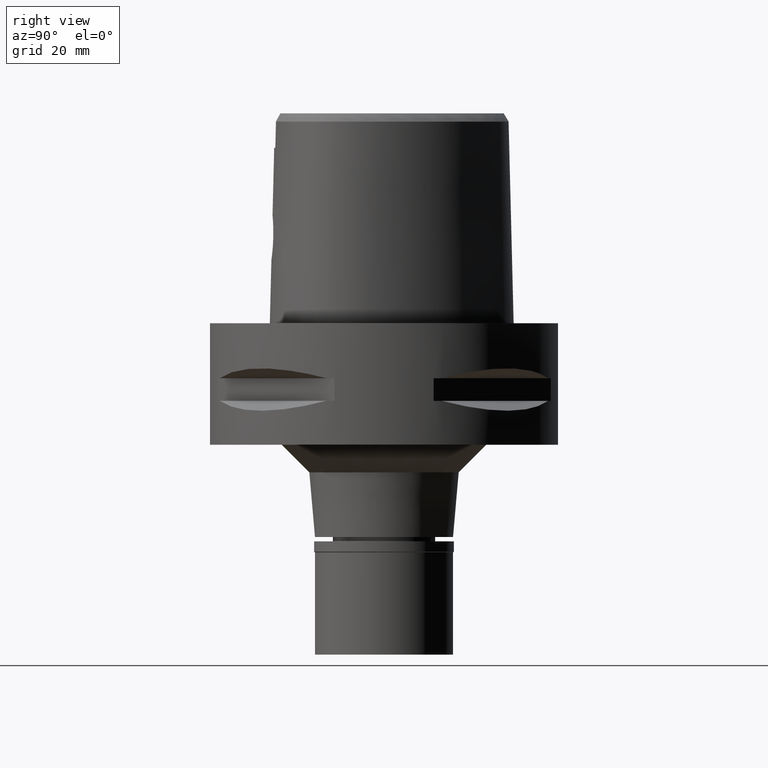
[diagram: clean part render]
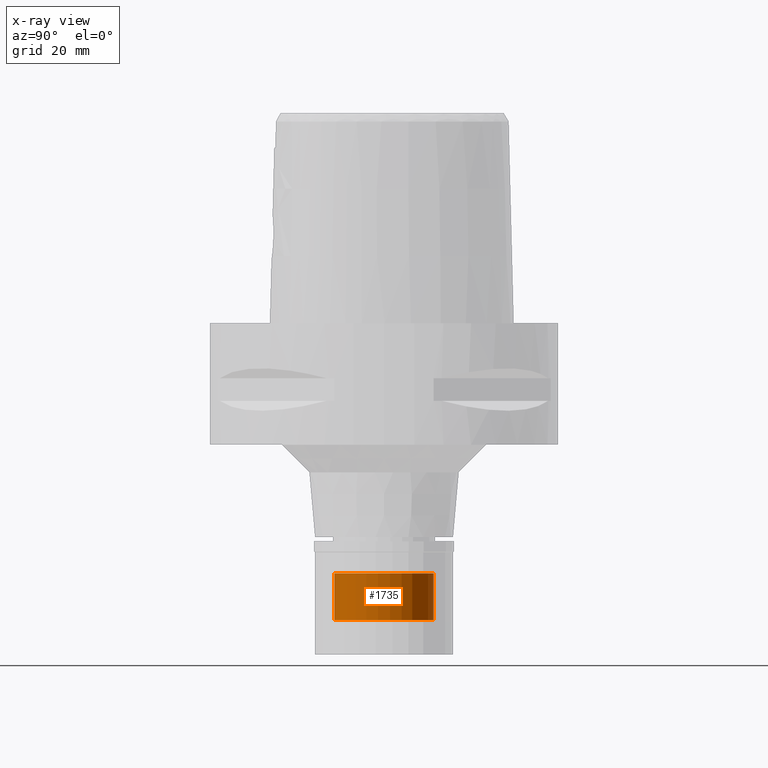
[diagram: x-ray — body ghosted, one internal face saturated and labeled with its STEP entity id]
A machine part, right view, then the same camera in x-ray: the body is ghosted and one INTERNAL B-rep face — a face not visible from any outside direction — is saturated and labeled: STEP entity #1735.
In plain terms, the highlighted cylindrical surface (partial cylindrical patch) has radius 9 mm, axis along (0, 0, -1).
Its self-contained STEP definition (entity closure, byte-faithful):
#149 = VERTEX_POINT ( 'NONE', #1316 ) ;
#302 = DIRECTION ( 'NONE',  ( 0.0000000000000000000, 1.000000000000000000, 0.0000000000000000000 ) ) ;
#328 = DIRECTION ( 'NONE',  ( 0.0000000000000000000, -1.000000000000000000, 0.0000000000000000000 ) ) ;
#397 = CARTESIAN_POINT ( 'NONE',  ( 0.0000000000000000000, 9.000000000000000000, -45.29999999999999716 ) ) ;
#442 = CYLINDRICAL_SURFACE ( 'NONE', #1451, 9.000000000000000000 ) ;
#526 = CARTESIAN_POINT ( 'NONE',  ( 0.0000000000000000000, -9.000000000000000000, -45.29999999999999716 ) ) ;
#602 = CIRCLE ( 'NONE', #3844, 9.000000000000000000 ) ;
#1196 = EDGE_LOOP ( 'NONE', ( #2160, #4680, #2123, #3723 ) ) ;
#1316 = CARTESIAN_POINT ( 'NONE',  ( 0.0000000000000000000, 9.000000000000000000, -53.79999999999999716 ) ) ;
#1433 = EDGE_CURVE ( 'NONE', #1615, #4029, #2239, .T. ) ;
#1451 = AXIS2_PLACEMENT_3D ( 'NONE', #2380, #1941, #4148 ) ;
#1566 = CARTESIAN_POINT ( 'NONE',  ( 0.0000000000000000000, -9.000000000000000000, -53.79999999999999716 ) ) ;
#1615 = VERTEX_POINT ( 'NONE', #397 ) ;
#1665 = VECTOR ( 'NONE', #1999, 1000.000000000000000 ) ;
#1735 = ADVANCED_FACE ( 'NONE', ( #2356 ), #442, .T. ) ;
#1772 = LINE ( 'NONE', #3243, #2224 ) ;
#1941 = DIRECTION ( 'NONE',  ( 0.0000000000000000000, 0.0000000000000000000, -1.000000000000000000 ) ) ;
#1999 = DIRECTION ( 'NONE',  ( 0.0000000000000000000, 0.0000000000000000000, -1.000000000000000000 ) ) ;
#2011 = AXIS2_PLACEMENT_3D ( 'NONE', #4328, #4672, #302 ) ;
#2123 = ORIENTED_EDGE ( 'NONE', *, *, #4142, .T. ) ;
#2125 = VERTEX_POINT ( 'NONE', #1566 ) ;
#2160 = ORIENTED_EDGE ( 'NONE', *, *, #1433, .T. ) ;
#2224 = VECTOR ( 'NONE', #4741, 1000.000000000000000 ) ;
#2239 = CIRCLE ( 'NONE', #2011, 9.000000000000000000 ) ;
#2356 = FACE_OUTER_BOUND ( 'NONE', #1196, .T. ) ;
#2380 = CARTESIAN_POINT ( 'NONE',  ( 0.0000000000000000000, 1.257589798043999847E-14, 2.689999999999999947 ) ) ;
#2852 = EDGE_CURVE ( 'NONE', #4029, #2125, #3834, .T. ) ;
#2898 = DIRECTION ( 'NONE',  ( 0.0000000000000000000, 0.0000000000000000000, 1.000000000000000000 ) ) ;
#3243 = CARTESIAN_POINT ( 'NONE',  ( 0.0000000000000000000, 9.000000000000000000, -45.29999999999999716 ) ) ;
#3708 = CARTESIAN_POINT ( 'NONE',  ( 0.0000000000000000000, 1.257589798043999847E-14, -53.79999999999999716 ) ) ;
#3723 = ORIENTED_EDGE ( 'NONE', *, *, #4219, .F. ) ;
#3834 = LINE ( 'NONE', #526, #1665 ) ;
#3844 = AXIS2_PLACEMENT_3D ( 'NONE', #3708, #2898, #328 ) ;
#4029 = VERTEX_POINT ( 'NONE', #4717 ) ;
#4142 = EDGE_CURVE ( 'NONE', #2125, #149, #602, .T. ) ;
#4148 = DIRECTION ( 'NONE',  ( 0.0000000000000000000, -1.000000000000000000, 0.0000000000000000000 ) ) ;
#4219 = EDGE_CURVE ( 'NONE', #1615, #149, #1772, .T. ) ;
#4328 = CARTESIAN_POINT ( 'NONE',  ( 0.0000000000000000000, 1.257589798043999847E-14, -45.29999999999999716 ) ) ;
#4672 = DIRECTION ( 'NONE',  ( 0.0000000000000000000, 0.0000000000000000000, -1.000000000000000000 ) ) ;
#4680 = ORIENTED_EDGE ( 'NONE', *, *, #2852, .T. ) ;
#4717 = CARTESIAN_POINT ( 'NONE',  ( 0.0000000000000000000, -9.000000000000000000, -45.29999999999999716 ) ) ;
#4741 = DIRECTION ( 'NONE',  ( 0.0000000000000000000, 0.0000000000000000000, -1.000000000000000000 ) ) ;